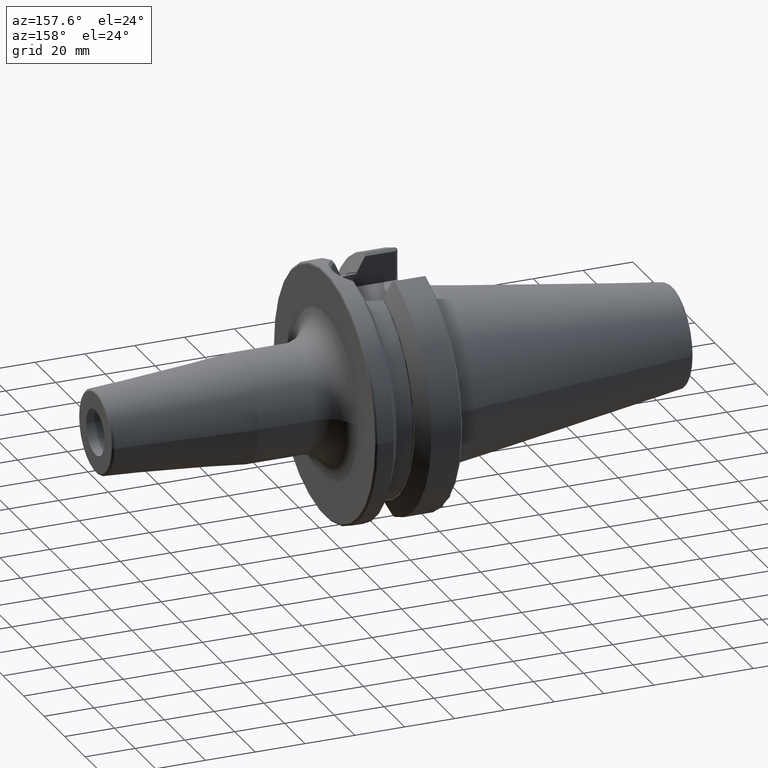
[diagram: clean part render]
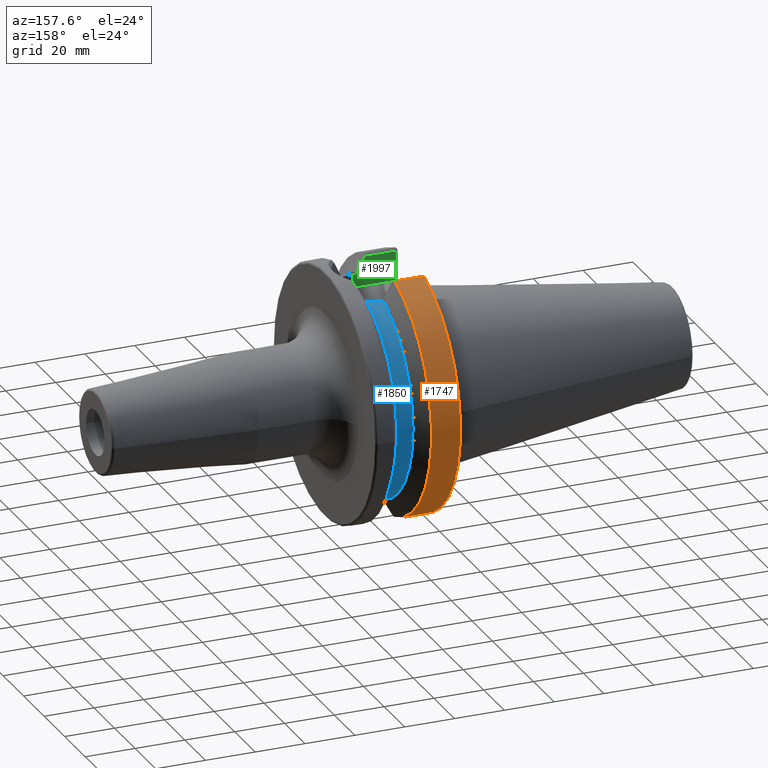
[diagram: same view with three faces highlighted in distinct colors, each labeled with its STEP entity id]
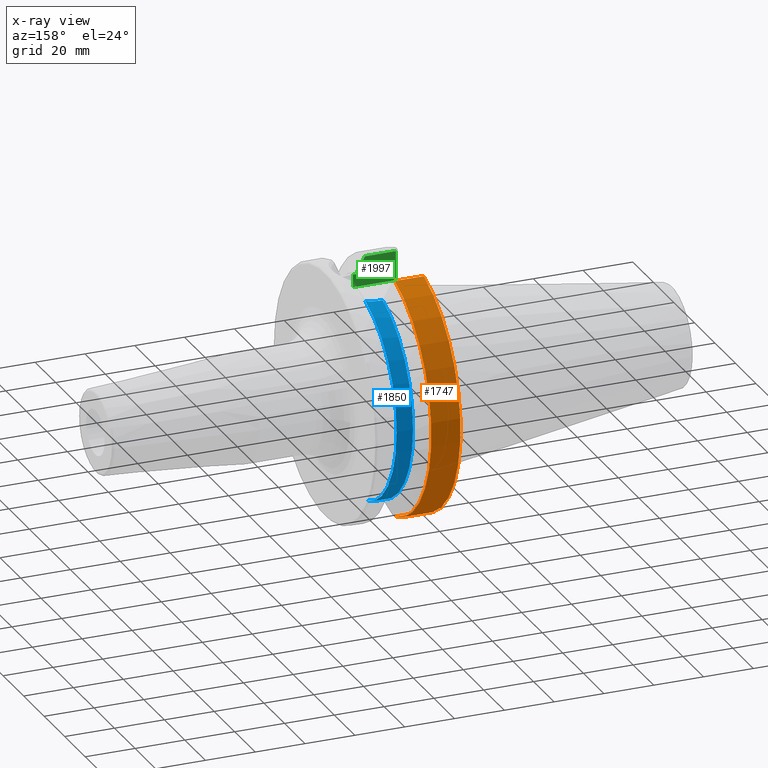
[diagram: x-ray of the same camera — body ghosted, the three highlighted faces saturated]
A machine part, auxiliary view with three faces highlighted in distinct colors.
The next image is the same camera in x-ray (body ghosted, the three faces saturated) — at least one of them is partly hidden behind the body in this view.
Their STEP definitions:

[orange] entity #1747 — the highlighted cylindrical surface (partial cylindrical patch) has radius 49.9875 mm, axis along (1, 0, 0).
#227=CARTESIAN_POINT('',(4.E0,0.E0,0.E0));
#228=DIRECTION('',(-1.E0,0.E0,0.E0));
#229=DIRECTION('',(0.E0,2.837968869610E-1,9.588844179312E-1));
#230=AXIS2_PLACEMENT_3D('',#227,#228,#229);
#232=DIRECTION('',(-1.E0,-7.302338022926E-8,-9.708531933347E-8));
#233=VECTOR('',#232,1.166933176412E1);
#234=CARTESIAN_POINT('',(1.566933176383E1,1.386327333875E1,-4.802665727057E1));
#235=LINE('',#234,#233);
#236=CARTESIAN_POINT('',(1.566933176383E1,0.E0,0.E0));
#237=DIRECTION('',(1.E0,0.E0,0.E0));
#238=DIRECTION('',(0.E0,2.773348004750E-1,-9.607733387462E-1));
#239=AXIS2_PLACEMENT_3D('',#236,#237,#238);
#241=DIRECTION('',(9.999999999989E-1,8.887251737038E-7,-1.189757232592E-6));
#242=VECTOR('',#241,1.166933177277E1);
#243=CARTESIAN_POINT('',(3.999999991073E0,1.418628651613E1,4.793224872501E1));
#244=LINE('',#243,#242);
#571=CARTESIAN_POINT('',(3.999999999701E0,1.386327248661E1,-4.802665840350E1));
#1342=CARTESIAN_POINT('',(1.566933176383E1,1.386327333875E1,-4.802665727057E1));
#1343=CARTESIAN_POINT('',(1.566933176383E1,1.418629688696E1,4.793223484134E1));
#1344=VERTEX_POINT('',#1342);
#1345=VERTEX_POINT('',#1343);
#1357=CARTESIAN_POINT('',(4.E0,1.418631682991E1,4.793222893890E1));
#1359=VERTEX_POINT('',#1357);
#1374=VERTEX_POINT('',#571);
#1733=CARTESIAN_POINT('',(-1.0879E2,0.E0,0.E0));
#1734=DIRECTION('',(1.E0,0.E0,0.E0));
#1735=DIRECTION('',(0.E0,-1.E0,0.E0));
#1736=AXIS2_PLACEMENT_3D('',#1733,#1734,#1735);
#1737=CYLINDRICAL_SURFACE('',#1736,4.99875E1);
#1739=ORIENTED_EDGE('',*,*,#1738,.T.);
#1741=ORIENTED_EDGE('',*,*,#1740,.F.);
#1742=ORIENTED_EDGE('',*,*,#1686,.T.);
#1744=ORIENTED_EDGE('',*,*,#1743,.F.);
#1745=EDGE_LOOP('',(#1739,#1741,#1742,#1744));
#1746=FACE_OUTER_BOUND('',#1745,.F.);
#1747=ADVANCED_FACE('',(#1746),#1737,.T.);
#231=CIRCLE('',#230,4.99875E1);
#240=CIRCLE('',#239,4.99875E1);
#1686=EDGE_CURVE('',#1344,#1345,#240,.T.);
#1738=EDGE_CURVE('',#1359,#1374,#231,.T.);
#1740=EDGE_CURVE('',#1344,#1374,#235,.T.);
#1743=EDGE_CURVE('',#1359,#1345,#244,.T.);

[blue] entity #1850 — the highlighted cylindrical surface (partial cylindrical patch) has radius 42.375 mm, axis along (1, 0, 0).
#186=DIRECTION('',(1.E0,0.E0,0.E0));
#187=VECTOR('',#186,1.435E0);
#188=CARTESIAN_POINT('',(1.99125E1,1.29025E1,-4.036293000700E1));
#189=LINE('',#188,#187);
#349=CARTESIAN_POINT('',(1.99125E1,0.E0,0.E0));
#350=DIRECTION('',(-1.E0,0.E0,0.E0));
#351=DIRECTION('',(0.E0,3.044837758112E-1,9.525175222891E-1));
#352=AXIS2_PLACEMENT_3D('',#349,#350,#351);
#354=CARTESIAN_POINT('',(2.13475E1,1.29025E1,-4.036293000700E1));
#355=CARTESIAN_POINT('',(2.193211835169E1,1.29025E1,-4.036293000700E1));
#356=CARTESIAN_POINT('',(2.309259987866E1,1.282394305612E1,-4.038817378856E1));
#357=CARTESIAN_POINT('',(2.482251458198E1,1.246756636177E1,-4.050035379602E1));
#358=CARTESIAN_POINT('',(2.593767013310E1,1.207328392825E1,-4.061943244291E1));
#359=CARTESIAN_POINT('',(2.64875E1,1.183447955129E1,-4.068888937720E1));
#361=CARTESIAN_POINT('',(2.64875E1,1.183447955129E1,4.068888937720E1));
#362=CARTESIAN_POINT('',(2.593767013310E1,1.207328392825E1,4.061943244291E1));
#363=CARTESIAN_POINT('',(2.482251458198E1,1.246756636177E1,4.050035379602E1));
#364=CARTESIAN_POINT('',(2.309259987866E1,1.282394305612E1,4.038817378856E1));
#365=CARTESIAN_POINT('',(2.193211835169E1,1.29025E1,4.036293000700E1));
#366=CARTESIAN_POINT('',(2.13475E1,1.29025E1,4.036293000700E1));
#448=CARTESIAN_POINT('',(2.64875E1,0.E0,0.E0));
#449=DIRECTION('',(-1.E0,0.E0,0.E0));
#450=DIRECTION('',(0.E0,2.792797534229E-1,9.602097788130E-1));
#451=AXIS2_PLACEMENT_3D('',#448,#449,#450);
#652=DIRECTION('',(1.E0,0.E0,0.E0));
#653=VECTOR('',#652,1.435E0);
#654=CARTESIAN_POINT('',(1.99125E1,1.29025E1,4.036293000700E1));
#655=LINE('',#654,#653);
#1188=CARTESIAN_POINT('',(1.99125E1,1.29025E1,4.036293000700E1));
#1189=CARTESIAN_POINT('',(1.99125E1,1.29025E1,-4.036293000700E1));
#1190=VERTEX_POINT('',#1188);
#1191=VERTEX_POINT('',#1189);
#1200=CARTESIAN_POINT('',(2.64875E1,1.183447955129E1,4.068888937720E1));
#1201=CARTESIAN_POINT('',(2.64875E1,1.183447955129E1,-4.068888937720E1));
#1202=VERTEX_POINT('',#1200);
#1203=VERTEX_POINT('',#1201);
#1322=CARTESIAN_POINT('',(2.13475E1,1.29025E1,4.036293000700E1));
#1323=VERTEX_POINT('',#1322);
#1330=CARTESIAN_POINT('',(2.13475E1,1.29025E1,-4.036293000700E1));
#1331=VERTEX_POINT('',#1330);
#1833=CARTESIAN_POINT('',(1.491626494021E1,0.E0,0.E0));
#1834=DIRECTION('',(1.E0,0.E0,0.E0));
#1835=DIRECTION('',(0.E0,-1.E0,0.E0));
#1836=AXIS2_PLACEMENT_3D('',#1833,#1834,#1835);
#1837=CYLINDRICAL_SURFACE('',#1836,4.2375E1);
#1838=ORIENTED_EDGE('',*,*,#1812,.T.);
#1839=ORIENTED_EDGE('',*,*,#1643,.T.);
#1841=ORIENTED_EDGE('',*,*,#1840,.T.);
#1843=ORIENTED_EDGE('',*,*,#1842,.F.);
#1845=ORIENTED_EDGE('',*,*,#1844,.T.);
#1847=ORIENTED_EDGE('',*,*,#1846,.F.);
#1848=EDGE_LOOP('',(#1838,#1839,#1841,#1843,#1845,#1847));
#1849=FACE_OUTER_BOUND('',#1848,.F.);
#1850=ADVANCED_FACE('',(#1849),#1837,.T.);
#353=CIRCLE('',#352,4.2375E1);
#360=B_SPLINE_CURVE_WITH_KNOTS('',3,(#354,#355,#356,#357,#358,#359),
.UNSPECIFIED.,.F.,.F.,(4,1,1,4),(0.E0,3.333333333333E-1,6.666666666667E-1,1.E0),
.UNSPECIFIED.);
#367=B_SPLINE_CURVE_WITH_KNOTS('',3,(#361,#362,#363,#364,#365,#366),
.UNSPECIFIED.,.F.,.F.,(4,1,1,4),(0.E0,3.333333333333E-1,6.666666666667E-1,1.E0),
.UNSPECIFIED.);
#452=CIRCLE('',#451,4.2375E1);
#1643=EDGE_CURVE('',#1191,#1331,#189,.T.);
#1812=EDGE_CURVE('',#1190,#1191,#353,.T.);
#1840=EDGE_CURVE('',#1331,#1203,#360,.T.);
#1842=EDGE_CURVE('',#1202,#1203,#452,.T.);
#1844=EDGE_CURVE('',#1202,#1323,#367,.T.);
#1846=EDGE_CURVE('',#1190,#1323,#655,.T.);

[green] entity #1997 — the highlighted planar face has unit normal (0, -1, 0).
#468=DIRECTION('',(0.E0,0.E0,1.E0));
#469=VECTOR('',#468,5.162930007E0);
#470=CARTESIAN_POINT('',(2.13475E1,-1.29025E1,3.52E1));
#471=LINE('',#470,#469);
#529=DIRECTION('',(0.E0,0.E0,1.E0));
#530=VECTOR('',#529,4.678451531613E-1);
#531=CARTESIAN_POINT('',(1.96625E1,-1.29025E1,4.062531376802E1));
#532=LINE('',#531,#530);
#533=CARTESIAN_POINT('',(1.640508297825E1,-1.29025E1,4.697335042340E1));
#534=CARTESIAN_POINT('',(1.678800997375E1,-1.29025E1,4.628553610571E1));
#535=CARTESIAN_POINT('',(1.753988026520E1,-1.29025E1,4.493290409157E1));
#536=CARTESIAN_POINT('',(1.862508060803E1,-1.29025E1,4.297399674455E1));
#537=CARTESIAN_POINT('',(1.932130614689E1,-1.29025E1,4.171256941858E1));
#538=CARTESIAN_POINT('',(1.96625E1,-1.29025E1,4.109315892118E1));
#540=DIRECTION('',(-1.E0,0.E0,0.E0));
#541=VECTOR('',#540,1.240508297825E1);
#542=CARTESIAN_POINT('',(1.640508297825E1,-1.29025E1,4.697335042340E1));
#543=LINE('',#542,#541);
#544=DIRECTION('',(0.E0,0.E0,-1.E0));
#545=VECTOR('',#544,1.177335042340E1);
#546=CARTESIAN_POINT('',(4.E0,-1.29025E1,4.697335042340E1));
#547=LINE('',#546,#545);
#548=DIRECTION('',(1.E0,0.E0,0.E0));
#549=VECTOR('',#548,1.435E0);
#550=CARTESIAN_POINT('',(1.99125E1,-1.29025E1,4.036293000700E1));
#551=LINE('',#550,#549);
#552=CARTESIAN_POINT('',(1.96625E1,-1.29025E1,4.062531376802E1));
#553=CARTESIAN_POINT('',(1.96625E1,-1.29025E1,4.059802443585E1));
#554=CARTESIAN_POINT('',(1.967010312706E1,-1.29025E1,4.054571527488E1));
#555=CARTESIAN_POINT('',(1.970597803203E1,-1.29025E1,4.046933362101E1));
#556=CARTESIAN_POINT('',(1.976358989115E1,-1.29025E1,4.040921074747E1));
#557=CARTESIAN_POINT('',(1.983275140013E1,-1.29025E1,4.037231907874E1));
#558=CARTESIAN_POINT('',(1.988482223968E1,-1.29025E1,4.036293000700E1));
#559=CARTESIAN_POINT('',(1.99125E1,-1.29025E1,4.036293000700E1));
#675=DIRECTION('',(1.E0,0.E0,0.E0));
#676=VECTOR('',#675,1.73475E1);
#677=CARTESIAN_POINT('',(4.E0,-1.29025E1,3.52E1));
#678=LINE('',#677,#676);
#1177=CARTESIAN_POINT('',(1.96625E1,-1.29025E1,4.062531376802E1));
#1179=VERTEX_POINT('',#1177);
#1185=CARTESIAN_POINT('',(1.99125E1,-1.29025E1,4.036293000700E1));
#1187=VERTEX_POINT('',#1185);
#1220=CARTESIAN_POINT('',(1.96625E1,-1.29025E1,4.109315892118E1));
#1222=VERTEX_POINT('',#1220);
#1306=CARTESIAN_POINT('',(2.13475E1,-1.29025E1,3.52E1));
#1308=VERTEX_POINT('',#1306);
#1325=CARTESIAN_POINT('',(2.13475E1,-1.29025E1,4.036293000700E1));
#1326=VERTEX_POINT('',#1325);
#1327=VERTEX_POINT('',#533);
#1346=CARTESIAN_POINT('',(4.E0,-1.29025E1,4.697335042340E1));
#1347=CARTESIAN_POINT('',(4.E0,-1.29025E1,3.52E1));
#1348=VERTEX_POINT('',#1346);
#1349=VERTEX_POINT('',#1347);
#1979=CARTESIAN_POINT('',(2.8E0,-1.29025E1,3.52E1));
#1980=DIRECTION('',(0.E0,-1.E0,0.E0));
#1981=DIRECTION('',(1.E0,0.E0,0.E0));
#1982=AXIS2_PLACEMENT_3D('',#1979,#1980,#1981);
#1983=PLANE('',#1982);
#1984=ORIENTED_EDGE('',*,*,#1672,.T.);
#1985=ORIENTED_EDGE('',*,*,#1713,.F.);
#1987=ORIENTED_EDGE('',*,*,#1986,.T.);
#1989=ORIENTED_EDGE('',*,*,#1988,.T.);
#1991=ORIENTED_EDGE('',*,*,#1990,.T.);
#1992=ORIENTED_EDGE('',*,*,#1959,.T.);
#1993=ORIENTED_EDGE('',*,*,#1860,.F.);
#1994=ORIENTED_EDGE('',*,*,#1828,.F.);
#1995=EDGE_LOOP('',(#1984,#1985,#1987,#1989,#1991,#1992,#1993,#1994));
#1996=FACE_OUTER_BOUND('',#1995,.F.);
#1997=ADVANCED_FACE('',(#1996),#1983,.F.);
#539=B_SPLINE_CURVE_WITH_KNOTS('',3,(#533,#534,#535,#536,#537,#538),
.UNSPECIFIED.,.F.,.F.,(4,1,1,4),(0.E0,3.333333333333E-1,6.666666666667E-1,1.E0),
.UNSPECIFIED.);
#560=B_SPLINE_CURVE_WITH_KNOTS('',3,(#552,#553,#554,#555,#556,#557,#558,#559),
.UNSPECIFIED.,.F.,.F.,(4,1,1,1,1,4),(0.E0,2.E-1,4.E-1,6.E-1,8.E-1,1.E0),
.UNSPECIFIED.);
#1672=EDGE_CURVE('',#1179,#1222,#532,.T.);
#1713=EDGE_CURVE('',#1327,#1222,#539,.T.);
#1828=EDGE_CURVE('',#1179,#1187,#560,.T.);
#1860=EDGE_CURVE('',#1187,#1326,#551,.T.);
#1959=EDGE_CURVE('',#1308,#1326,#471,.T.);
#1986=EDGE_CURVE('',#1327,#1348,#543,.T.);
#1988=EDGE_CURVE('',#1348,#1349,#547,.T.);
#1990=EDGE_CURVE('',#1349,#1308,#678,.T.);